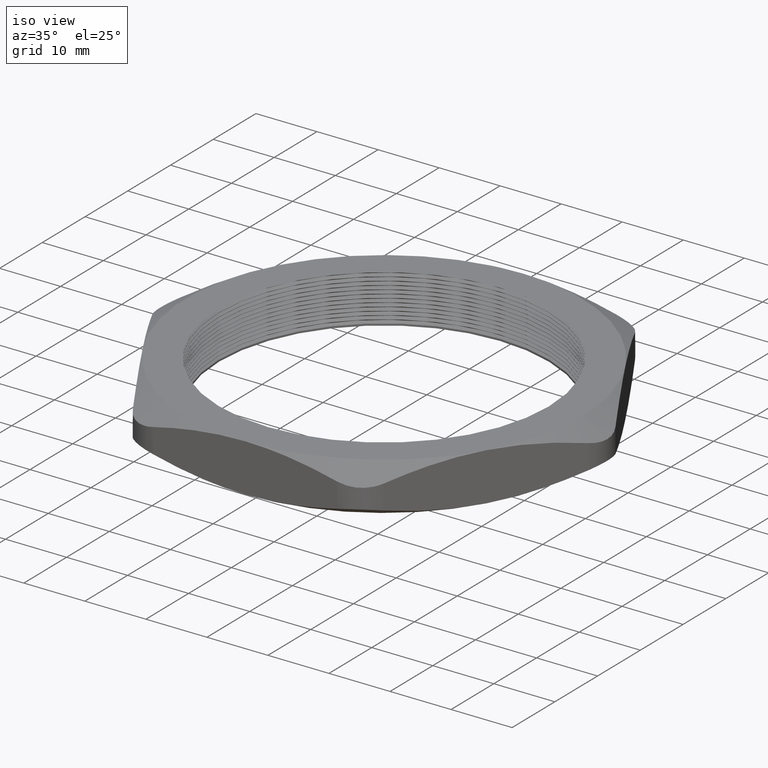
[diagram: clean part render]
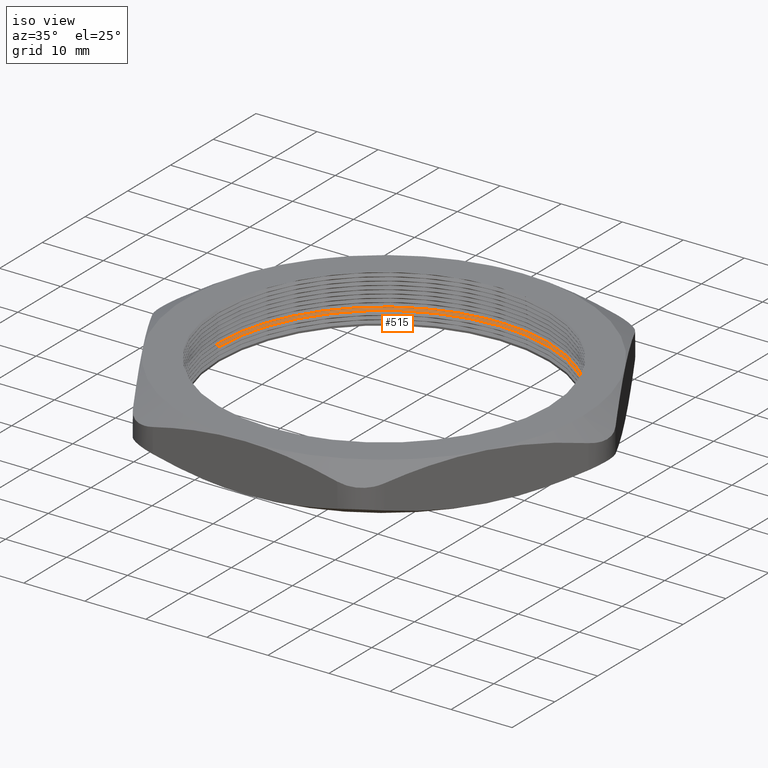
[diagram: same view with one face highlighted and labeled with its STEP entity id]
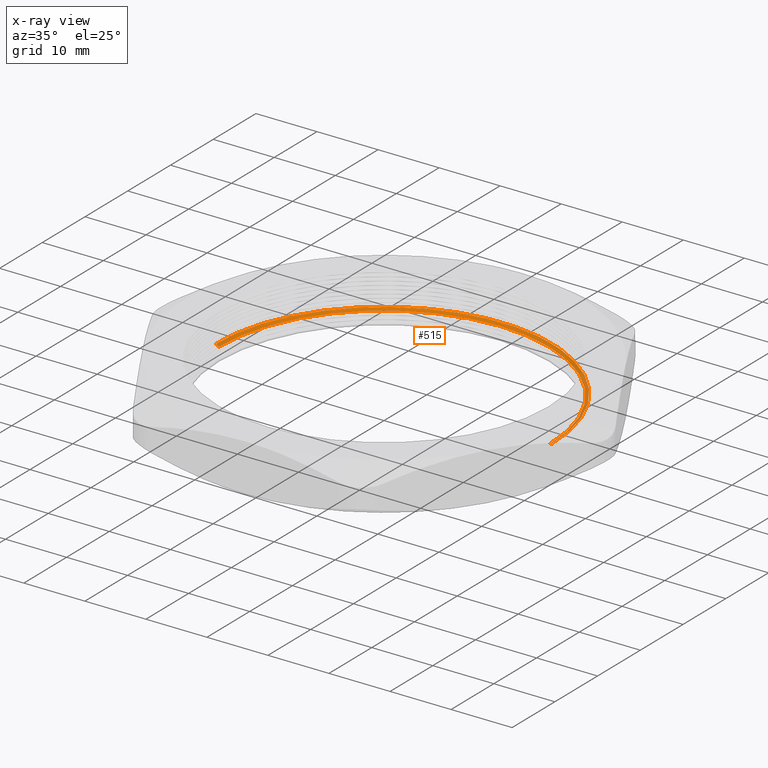
[diagram: x-ray of the same camera — body ghosted, the highlighted face saturated]
A machine part, iso view. The second image highlights one B-rep face of the part: STEP entity #515.
The next image is the same camera in x-ray: the body ghosted, the highlighted face saturated — about 13% of this face is hidden behind the body in this view.
In plain terms, the highlighted conical surface has half-angle 60 deg.
Its self-contained STEP definition (entity closure, byte-faithful):
#178 = VERTEX_POINT ( 'NONE', #1355 ) ;
#180 = VERTEX_POINT ( 'NONE', #1354 ) ;
#181 = EDGE_CURVE ( 'NONE', #190, #178, #1353, .T. ) ;
#186 = EDGE_CURVE ( 'NONE', #189, #180, #1344, .T. ) ;
#189 = VERTEX_POINT ( 'NONE', #1339 ) ;
#190 = VERTEX_POINT ( 'NONE', #1338 ) ;
#514 = EDGE_CURVE ( 'NONE', #178, #180, #1929, .T. ) ;
#515 = ADVANCED_FACE ( 'NONE', ( #1922 ), #1921, .F. ) ;
#516 = EDGE_LOOP ( 'NONE', ( #517, #518, #519, #520 ) ) ;
#517 = ORIENTED_EDGE ( 'NONE', *, *, #186, .F. ) ;
#518 = ORIENTED_EDGE ( 'NONE', *, *, #684, .F. ) ;
#519 = ORIENTED_EDGE ( 'NONE', *, *, #181, .T. ) ;
#520 = ORIENTED_EDGE ( 'NONE', *, *, #514, .T. ) ;
#684 = EDGE_CURVE ( 'NONE', #190, #189, #2195, .T. ) ;
#1338 = CARTESIAN_POINT ( 'NONE',  ( 1.064999999999999900, 1.304248841091931100E-016, 0.08690598923241495100 ) ) ;
#1339 = CARTESIAN_POINT ( 'NONE',  ( -1.064999999999999900, 0.0000000000000000000, 0.08690598923241495100 ) ) ;
#1341 = DIRECTION ( 'NONE',  ( -0.8660254037844346000, 1.060575238724902100E-016, 0.5000000000000068800 ) ) ;
#1342 = VECTOR ( 'NONE', #1341, 39.37007874015748100 ) ;
#1343 = CARTESIAN_POINT ( 'NONE',  ( -1.064999999999999900, 1.304248841091931100E-016, 0.08690598923241495100 ) ) ;
#1344 = LINE ( 'NONE', #1343, #1342 ) ;
#1350 = DIRECTION ( 'NONE',  ( 0.8660254037844346000, 0.0000000000000000000, 0.5000000000000068800 ) ) ;
#1351 = VECTOR ( 'NONE', #1350, 39.37007874015748100 ) ;
#1352 = CARTESIAN_POINT ( 'NONE',  ( 1.064999999999999900, 0.0000000000000000000, 0.08690598923241495100 ) ) ;
#1353 = LINE ( 'NONE', #1352, #1351 ) ;
#1354 = CARTESIAN_POINT ( 'NONE',  ( -1.085000000000000000, 0.0000000000000000000, 0.09845299461620771200 ) ) ;
#1355 = CARTESIAN_POINT ( 'NONE',  ( 1.085000000000000000, 1.328741777074878400E-016, 0.09845299461620771200 ) ) ;
#1916 = DIRECTION ( 'NONE',  ( 1.000000000000000000, 0.0000000000000000000, 0.0000000000000000000 ) ) ;
#1917 = DIRECTION ( 'NONE',  ( 0.0000000000000000000, 0.0000000000000000000, 1.000000000000000000 ) ) ;
#1918 = CARTESIAN_POINT ( 'NONE',  ( 0.0000000000000000000, 0.0000000000000000000, 0.08690598923241495100 ) ) ;
#1919 = AXIS2_PLACEMENT_3D ( 'NONE', #1918, #1917, #1916 ) ;
#1921 = CONICAL_SURFACE ( 'NONE', #1919, 1.064999999999999900, 1.047197551196589900 ) ;
#1922 = FACE_OUTER_BOUND ( 'NONE', #516, .T. ) ;
#1923 = DIRECTION ( 'NONE',  ( 1.000000000000000000, 0.0000000000000000000, 0.0000000000000000000 ) ) ;
#1924 = DIRECTION ( 'NONE',  ( 0.0000000000000000000, 0.0000000000000000000, 1.000000000000000000 ) ) ;
#1925 = CARTESIAN_POINT ( 'NONE',  ( 0.0000000000000000000, 0.0000000000000000000, 0.09845299461620771200 ) ) ;
#1926 = AXIS2_PLACEMENT_3D ( 'NONE', #1925, #1924, #1923 ) ;
#1929 = CIRCLE ( 'NONE', #1926, 1.085000000000000000 ) ;
#2192 = DIRECTION ( 'NONE',  ( 1.000000000000000000, 0.0000000000000000000, 0.0000000000000000000 ) ) ;
#2193 = DIRECTION ( 'NONE',  ( 0.0000000000000000000, 0.0000000000000000000, 1.000000000000000000 ) ) ;
#2194 = AXIS2_PLACEMENT_3D ( 'NONE', #2200, #2193, #2192 ) ;
#2195 = CIRCLE ( 'NONE', #2194, 1.064999999999999900 ) ;
#2200 = CARTESIAN_POINT ( 'NONE',  ( 0.0000000000000000000, 0.0000000000000000000, 0.08690598923241495100 ) ) ;